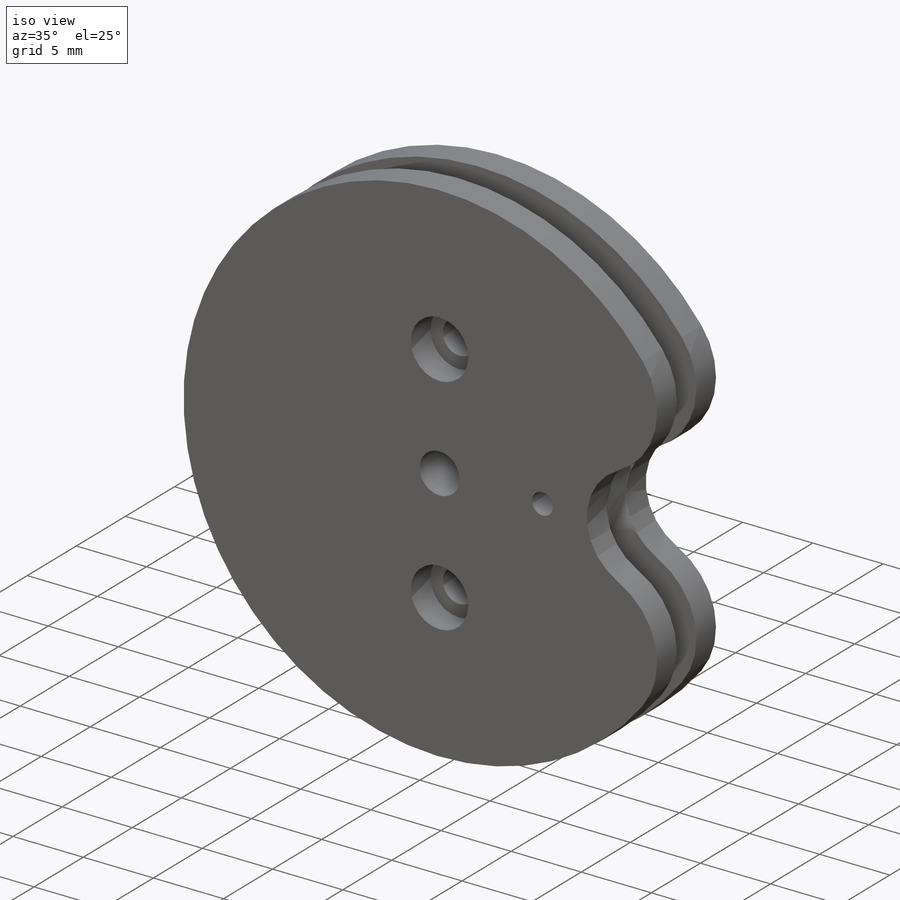
[diagram: iso view]
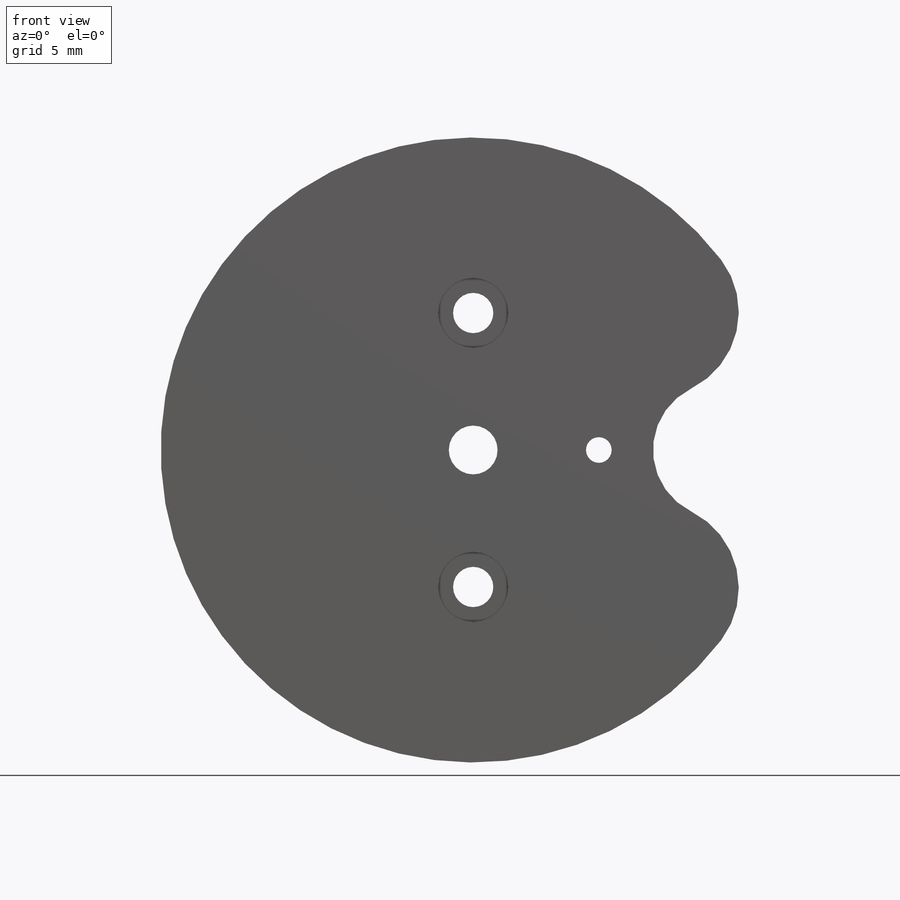
[diagram: front view]
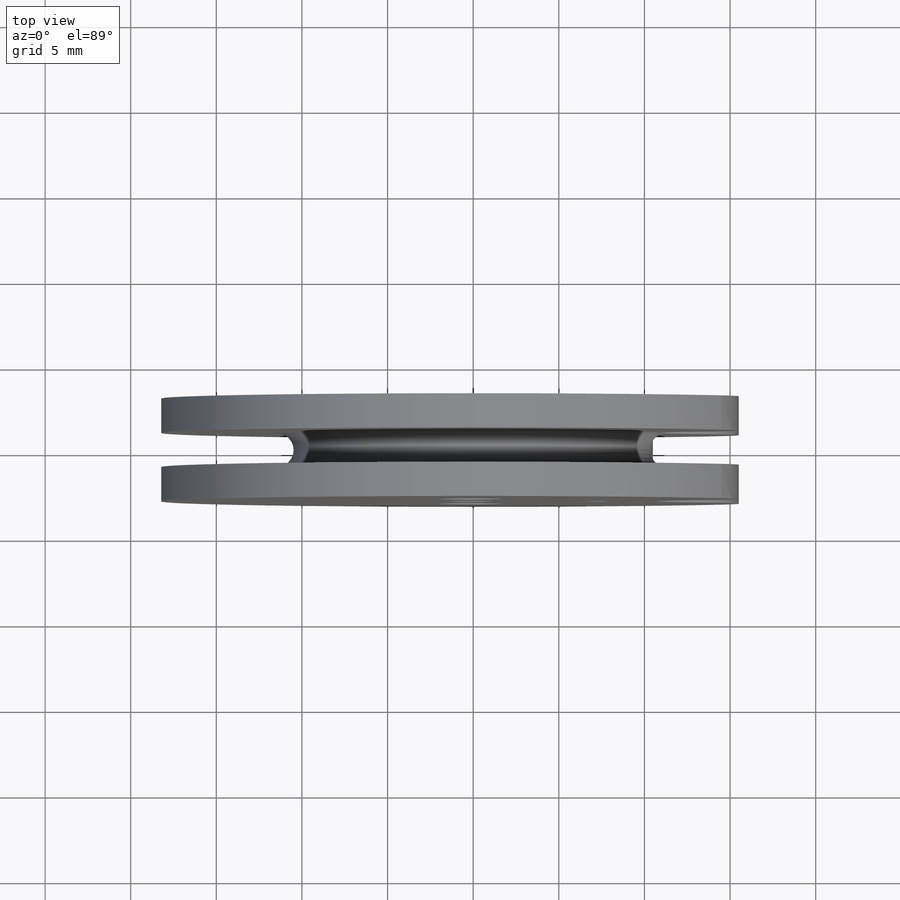
[diagram: top view]
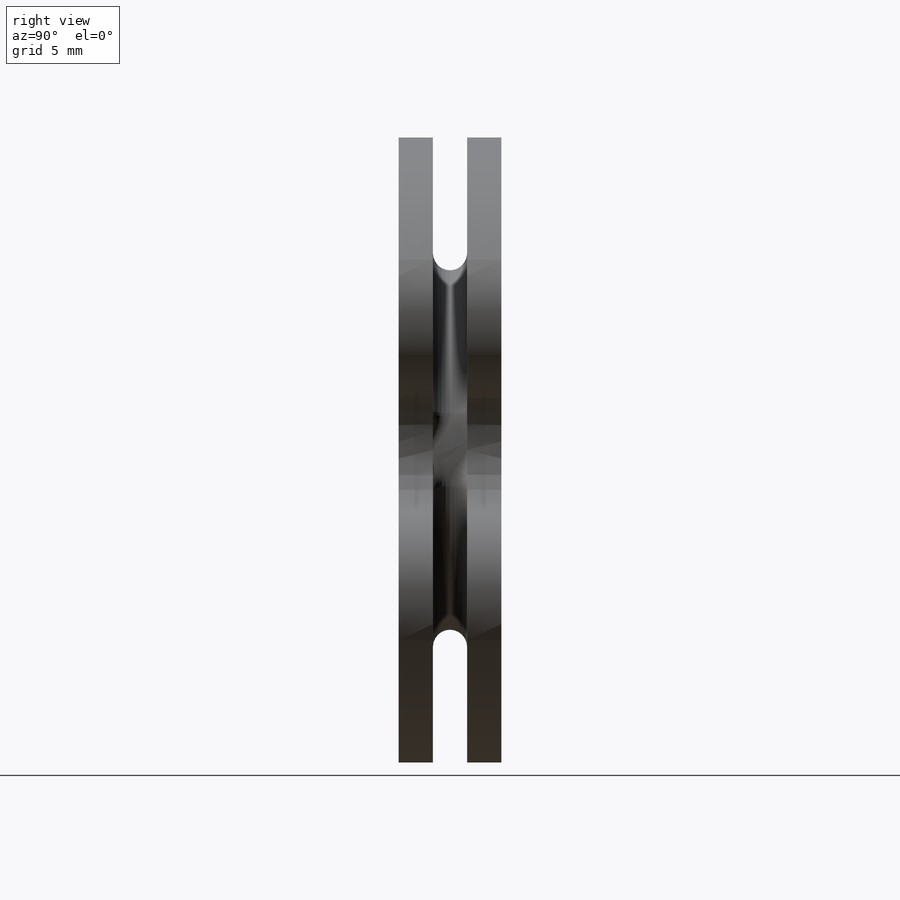
[diagram: right view]
SOLIDWORKS PART (.sldprt)
format: sldprt  version: not decoded by parser v0  size: 318,464 bytes
history: native  units: mm
features: sketch x7, extrude x3, cut_extrude x3, fillet x2, material x1 + 1 further entry (+17 scaffold rows collapsed; 3 parser-record rows omitted)
feature tree (37):
  scaffold x17  (default folders/planes/origin — collapsed)
  material  "ABS"
  sketch  "values-params_print"  dims[width destroy=0.7mm width keep=3.0mm width tab=4.0mm base diameter=105.0mm print fit=0.15mm print free=0.4mm anchor diameter=3.0mm pin diameter=3.175mm pulley diameter=9.5mm pulley thickness=2.4mm base pin diameter=6.35mm]
  "params_print"
  parser-record x3  (decoder bookkeeping rows leaked as tree rows — omitted from the tree; the rows remain in map.json)
  sketch  "Sketch1"  dims[c1.D1=36.5mm c1.D2=8.35mm c1.D3=4.1mm c1.D4=3.75mm c2.D3=~26.459288mm c2.D4=8.0mm c2.D5=~19.228344mm]
  extrude  "Main Body"  Depth=6mm
  sketch  "Sketch2"  dims[D1=2.85mm]
  extrude  "Main Bolt Surface"  Depth=2.85mm
  sketch  "Sketch4"  dims[D1=~1.56471mm]
  cut_extrude  "Pulley Slot"  Depth=2mm
  sketch  "Sketch5"  dims[D1=2.35mm D2=~9.338088mm]
  extrude  "Support Bolt Surface"  Depth=2mm
  sketch  "Sketch6"  dims[D1=~11.729201mm]
  cut_extrude  "Tendon Anchor Clearance"  [1 undecoded]
  fillet  "Inner Contouring"  Radius=1mm
  sketch  "Sketch8"  dims[D1=~22.172854mm]
  cut_extrude  "Tendon Anchor"  [1 undecoded]
  fillet  "Contouring"  Radius=5mm
decode coverage: 13 of 15 modeling features carry decoded parameters; 1 rows unclassified (native names shown)
note: ~ marks probable driven/reference dimensions
note: 2 parameter values undecoded
note: suppression state not decoded; provenance and decode notes live in map.json
